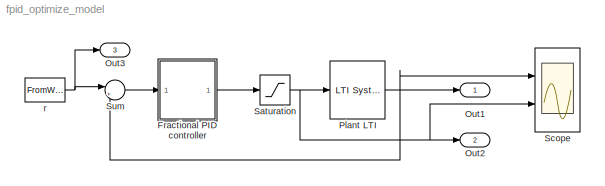
MODEL fpid_optimize_model
KIND model
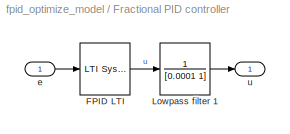
BLOCK [SubSystem] Fractional PID controller
  FunctionWithSeparateData = off
  MaskHideContents = off
  MinAlgLoopOccurrences = off
  Opaque = off
  Ports = [1, 1]
  PropExecContextOutsideSubsystem = off
  RTWSystemCode = Auto
  RequestExecContextInheritance = off
  SID = 14
BLOCK [Reference] Fractional PID controller/FPID LTI  REF=cstblocks/LTI System
  IC = []
  Ports = [1, 1]
  SID = 11
  SourceBlock = cstblocks/LTI System
  SourceType = LTI Block
  sys = fpid_optimize_fpid
BLOCK [TransferFcn] Fractional PID controller/Lowpass filter 1
  Denominator = [0.0001 1]
  Numerator = 1
  SID = 12
BLOCK [Inport] Fractional PID controller/e
  IconDisplay = Port number
  SID = 15
BLOCK [Outport] Fractional PID controller/u
  IconDisplay = Port number
  SID = 16
BLOCK [Outport] Out1
  IconDisplay = Port number
  SID = 5
BLOCK [Outport] Out2
  IconDisplay = Port number
  Port = 2
  SID = 9
BLOCK [Outport] Out3
  IconDisplay = Port number
  Port = 3
  SID = 22
BLOCK [Reference] Plant LTI  REF=cstblocks/LTI System
  IC = []
  Ports = [1, 1]
  SID = 20
  SourceBlock = cstblocks/LTI System
  SourceType = LTI Block
  sys = fpid_optimize_lti
BLOCK [Saturate] Saturation
  InputPortMap = u0
  LowerLimit = -1
  Ports = [1, 1]
  SID = 6
  UpperLimit = 1
BLOCK [Scope] Scope
  DataFormat = StructureWithTime
  Floating = off
  LimitDataPoints = off
  NumInputPorts = 2
  Ports = [2]
  SID = 10
  SampleTime = 0
  ShowLegends = off
  YMax = 5~5
  YMin = -5~-5
BLOCK [Sum] Sum
  IconShape = round
  InputSameDT = off
  Inputs = |+-
  OutDataTypeStr = Inherit: Inherit via internal rule
  Ports = [2, 1]
  SID = 3
  SaturateOnIntegerOverflow = off
BLOCK [FromWorkspace] r
  Interpolate = off
  OutputAfterFinalValue = Cyclic repetition
  SID = 21
  SampleTime = 0.5
  VariableName = fpid_optimize_ref
  ZeroCross = on
LINE Fractional PID controller/FPID LTI:1 -> Fractional PID controller/Lowpass filter 1:1
LINE Fractional PID controller/Lowpass filter 1:1 -> Fractional PID controller/u:1
LINE Fractional PID controller/e:1 -> Fractional PID controller/FPID LTI:1
LINE Fractional PID controller:1 -> Saturation:1
NET Plant LTI:1 -> Out1:1, Scope:1, Sum:2
NET Saturation:1 -> Out2:1, Plant LTI:1, Scope:2
LINE Sum:1 -> Fractional PID controller:1
NET r:1 -> Out3:1, Sum:1
note: NET lines group one-source signal fan-out (src -> all destinations, sorted); 1:1 wires keep LINE
